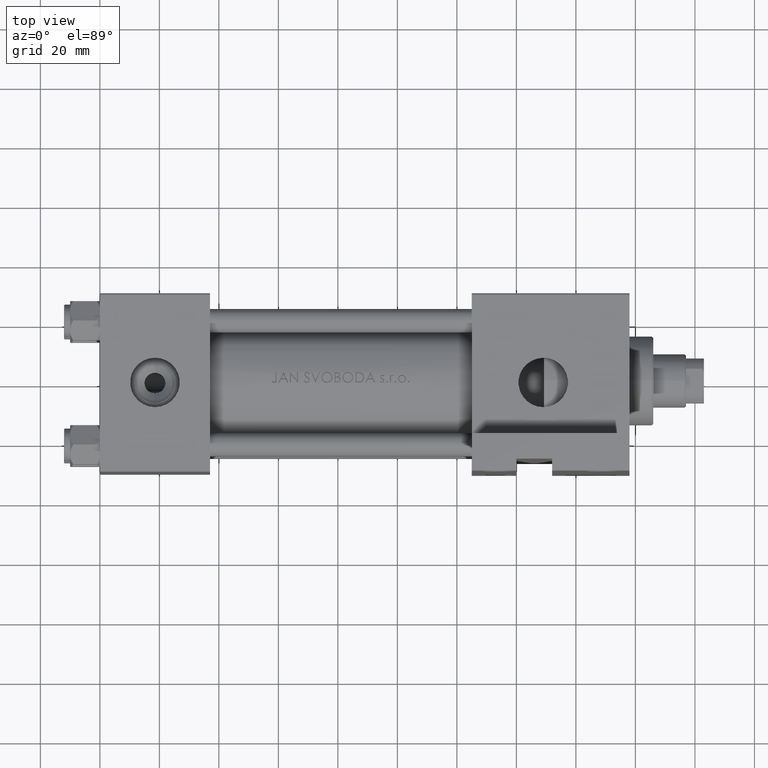
[diagram: clean part render]
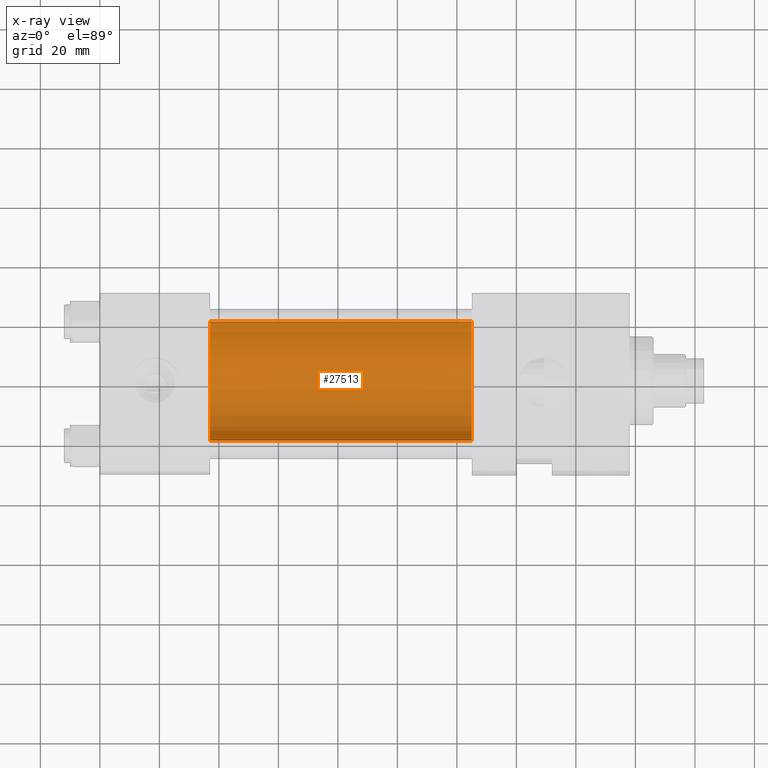
[diagram: x-ray — body ghosted, one internal face saturated and labeled with its STEP entity id]
A machine part, top view, then the same camera in x-ray: the body is ghosted and one INTERNAL B-rep face — a face not visible from any outside direction — is saturated and labeled: STEP entity #27513.
In plain terms, the highlighted cylindrical surface (partial cylindrical patch) has radius 20 mm, axis along (-1, -0, 0).
Its self-contained STEP definition (entity closure, byte-faithful):
#312 = CIRCLE ( 'NONE', #5037, 20.00000000000000000 ) ;
#1676 = CARTESIAN_POINT ( 'NONE',  ( 125.0000000000000000, -1.224646799147354686E-16, 1.000000000000000888 ) ) ;
#1832 = ORIENTED_EDGE ( 'NONE', *, *, #23385, .F. ) ;
#4238 = ORIENTED_EDGE ( 'NONE', *, *, #47468, .T. ) ;
#4635 = VERTEX_POINT ( 'NONE', #6135 ) ;
#4908 = EDGE_CURVE ( 'NONE', #24529, #4635, #26246, .T. ) ;
#5037 = AXIS2_PLACEMENT_3D ( 'NONE', #33574, #48613, #14861 ) ;
#5371 = DIRECTION ( 'NONE',  ( -1.000000000000000000, -0.000000000000000000, -0.000000000000000000 ) ) ;
#6135 = CARTESIAN_POINT ( 'NONE',  ( 37.00000000000000000, 2.326828918379970970E-15, -19.00000000000000000 ) ) ;
#11934 = DIRECTION ( 'NONE',  ( 0.000000000000000000, 0.000000000000000000, -1.000000000000000000 ) ) ;
#12423 = CARTESIAN_POINT ( 'NONE',  ( 125.0000000000000000, -1.224646799147354686E-16, 1.000000000000000888 ) ) ;
#12479 = DIRECTION ( 'NONE',  ( -1.000000000000000000, -0.000000000000000000, -0.000000000000000000 ) ) ;
#13266 = DIRECTION ( 'NONE',  ( 0.000000000000000000, 0.000000000000000000, 1.000000000000000000 ) ) ;
#13538 = ORIENTED_EDGE ( 'NONE', *, *, #4908, .F. ) ;
#14861 = DIRECTION ( 'NONE',  ( 0.000000000000000000, 0.000000000000000000, -1.000000000000000000 ) ) ;
#19631 = CARTESIAN_POINT ( 'NONE',  ( 125.0000000000000000, -1.224646799147354686E-16, 21.00000000000000000 ) ) ;
#20136 = AXIS2_PLACEMENT_3D ( 'NONE', #1676, #5371, #13266 ) ;
#23385 = EDGE_CURVE ( 'NONE', #4635, #39427, #312, .T. ) ;
#23502 = DIRECTION ( 'NONE',  ( 1.000000000000000000, 0.000000000000000000, 0.000000000000000000 ) ) ;
#23607 = CYLINDRICAL_SURFACE ( 'NONE', #20136, 20.00000000000000000 ) ;
#24529 = VERTEX_POINT ( 'NONE', #30853 ) ;
#26246 = LINE ( 'NONE', #29708, #34347 ) ;
#26484 = AXIS2_PLACEMENT_3D ( 'NONE', #12423, #23502, #11934 ) ;
#27513 = ADVANCED_FACE ( 'NONE', ( #42331 ), #23607, .F. ) ;
#29708 = CARTESIAN_POINT ( 'NONE',  ( 125.0000000000000000, 2.326828918379970970E-15, -19.00000000000000000 ) ) ;
#30186 = DIRECTION ( 'NONE',  ( -1.000000000000000000, -0.000000000000000000, -0.000000000000000000 ) ) ;
#30421 = CIRCLE ( 'NONE', #26484, 20.00000000000000000 ) ;
#30853 = CARTESIAN_POINT ( 'NONE',  ( 125.0000000000000000, 2.326828918379970970E-15, -19.00000000000000000 ) ) ;
#33146 = EDGE_CURVE ( 'NONE', #24529, #36251, #30421, .T. ) ;
#33574 = CARTESIAN_POINT ( 'NONE',  ( 37.00000000000000000, -1.224646799147354686E-16, 1.000000000000000888 ) ) ;
#34347 = VECTOR ( 'NONE', #30186, 1000.000000000000000 ) ;
#36251 = VERTEX_POINT ( 'NONE', #43245 ) ;
#36272 = VECTOR ( 'NONE', #12479, 1000.000000000000000 ) ;
#37938 = CARTESIAN_POINT ( 'NONE',  ( 37.00000000000000000, -1.224646799147354686E-16, 21.00000000000000000 ) ) ;
#39427 = VERTEX_POINT ( 'NONE', #37938 ) ;
#42331 = FACE_OUTER_BOUND ( 'NONE', #45474, .T. ) ;
#43245 = CARTESIAN_POINT ( 'NONE',  ( 125.0000000000000000, -1.224646799147354686E-16, 21.00000000000000000 ) ) ;
#45474 = EDGE_LOOP ( 'NONE', ( #13538, #48658, #4238, #1832 ) ) ;
#45988 = LINE ( 'NONE', #19631, #36272 ) ;
#47468 = EDGE_CURVE ( 'NONE', #36251, #39427, #45988, .T. ) ;
#48613 = DIRECTION ( 'NONE',  ( 1.000000000000000000, 0.000000000000000000, 0.000000000000000000 ) ) ;
#48658 = ORIENTED_EDGE ( 'NONE', *, *, #33146, .T. ) ;